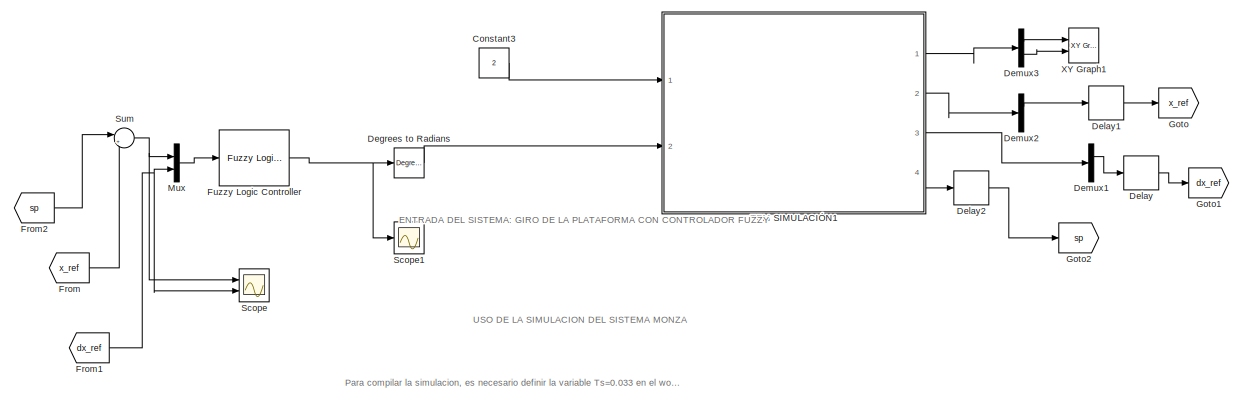
[diagram: root canvas - part 1/2, full width, top band]
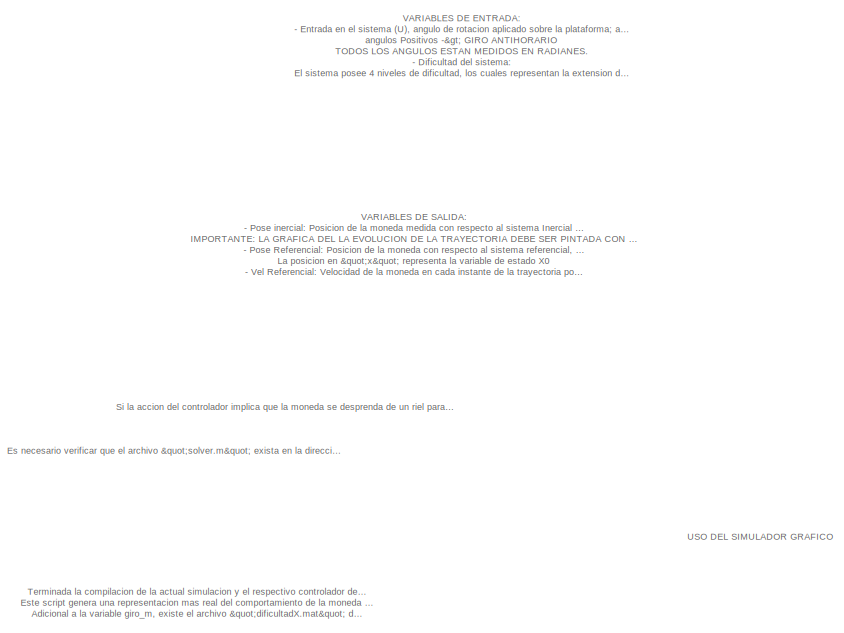
[diagram: root canvas - part 2/2, bottom left region]
MODEL slx_ee304b7265f8
KIND model
CONFIG AbsTol = auto
CONFIG EnableMultiTasking = off
CONFIG FixedStep = auto
CONFIG MaxStep = auto
CONFIG MinStep = auto
CONFIG RelTol = 1e-3
CONFIG SampleTimeConstraint = Unconstrained
CONFIG SolverName = VariableStepAuto
CONFIG StartTime = 0.0
CONFIG StopTime = 20
BLOCK [Constant] Constant3
  Value = 2
BLOCK [Reference] Degrees to Radians  REF=simulink_extras/Transformations/Degrees to
Radians
  Ports = [1, 1]
  SourceBlock = simulink_extras/Transformations/Degrees to\nRadians
  SourceProductBaseCode = SL
  SourceType = DegreesToRadians
BLOCK [Delay] Delay
  DelayLength = 1
  InitialCondition = 0
  InputPortMap = u0
  Ports = [1, 1]
BLOCK [Delay] Delay1
  DelayLength = 1
  InitialCondition = 0
  InputPortMap = u0
  Ports = [1, 1]
BLOCK [Delay] Delay2
  DelayLength = 1
  InitialCondition = 0
  InputPortMap = u0
  Ports = [1, 1]
BLOCK [Demux] Demux1
  Outputs = 2
  Ports = [1, 2]
BLOCK [Demux] Demux2
  Outputs = 2
  Ports = [1, 2]
BLOCK [Demux] Demux3
  Outputs = 2
  Ports = [1, 2]
BLOCK [From] From
  GotoTag = x_ref
BLOCK [From] From1
  GotoTag = dx_ref
BLOCK [From] From2
  GotoTag = sp
BLOCK [Reference] Fuzzy Logic Controller  REF=fuzblock/Fuzzy Logic   (lib defined in mdl_858b3b3e7478)
Controller
  Ports = [1, 1]
  SourceBlock = fuzblock/Fuzzy Logic \nController
  SourceProductBaseCode = FL
  SourceType = Fuzzy Inference System
BLOCK [Goto] Goto
  GotoTag = x_ref
BLOCK [Goto] Goto1
  GotoTag = dx_ref
BLOCK [Goto] Goto2
  GotoTag = sp
BLOCK [Mux] Mux
  DisplayOption = bar
  Inputs = 2
  Ports = [2, 1]
BLOCK [Scope] Scope
  Floating = off
  NumInputPorts = 2
  Ports = [2]
  ScopeSpecificationString = Simulink.scopes.TimeScopeBlockCfg('CurrentConfiguration', extmgr.ConfigurationSet(extmgr.Configuration('Core','General UI',true),extmgr.Configuration('Core','Source UI',true),extmgr.Configuration('Sources','WiredSimulink',true),extmgr.Configuration('Visuals','Time Domain',true,'SerializedDisplays',{struct('MinYLimReal','-0.53071','MaxYLimReal','0.50894','YLabelReal','','MinYLimMag','0.00000','MaxY...<+1363ch>
BLOCK [Scope] Scope1
  Floating = off
  NumInputPorts = 1
  Ports = [1]
  ScopeSpecificationString = Simulink.scopes.TimeScopeBlockCfg('CurrentConfiguration', extmgr.ConfigurationSet(extmgr.Configuration('Core','General UI',true),extmgr.Configuration('Core','Source UI',true),extmgr.Configuration('Sources','WiredSimulink',true,'DataLoggingVariableName','ScopeData1'),extmgr.Configuration('Visuals','Time Domain',true,'SerializedDisplays',{struct('MinYLimReal','-25.32927','MaxYLimReal','27.93481','YL...<+1388ch>
BLOCK [Sum] Sum
  Inputs = |+-
  Ports = [2, 1]
BLOCK [ModelReference] TFM SIMULACIÓN1
  Gain = 0.05
  Gain2 = 0.013
  ModelNameDialog = TFM_SIMULACI_N1.slx
  ModelReferenceVersion = 7.2
  Ports = [2, 4]
  UsingDefaultArgumentValue = 0,0
BLOCK [Reference] XY Graph1  REF=simulink/Sinks/XY Graph
  Ports = [2]
  SourceBlock = simulink/Sinks/XY Graph
  SourceProductBaseCode = SL
  SourceType = XY scope.
ANNOTATION (root): VARIABLES DE ENTRADA: - Entrada en el sistema (U), angulo de rotacion aplicado sobre la plataforma; angulos Negativos -> GIRO HORARIO angulos Positivos -> GIRO ANTIHORARIO TODOS LOS ANGULOS ESTAN MEDIDOS EN RADIANES. - Dificultad del sistema: El sistema posee 4 niveles de dificultad, los cuales representan la extension de los rieles parabolicos en las pistas donde se desplaza la moneda. Para estab...<+97ch>
ANNOTATION (root): VARIABLES DE SALIDA: - Pose inercial: Posicion de la moneda medida con respecto al sistema Inercial (estatico)en el centro geometrico del disco. IMPORTANTE: LA GRAFICA DEL LA EVOLUCION DE LA TRAYECTORIA DEBE SER PINTADA CON RESPECTO A ESTE SISTEMA - Pose Referencial: Posicion de la moneda con respecto al sistema referencial, sistema sobre el cual estan descritas las ecuaciones de la parabola que d...<+257ch>
ANNOTATION (root): Es necesario verificar que el archivo "solver.m" exista en la direccion actual donde se esta ejecutando la simulacion debido a que este script es importante para resolver las ecuaciones de trayectoria de la caida de la moneda con el impacto del posterior riel parabolico.
ANNOTATION (root): Para compilar la simulacion, es necesario definir la variable Ts=0.033 en el workspace de MATLAB.
ANNOTATION (root): Si la accion del controlador implica que la moneda se desprenda de un riel parabolico y el juego "termine", la simulacion se detendra emitiendo un error de sistema, no significa que existe error de compilacion.
ANNOTATION (root): Terminada la compilacion de la actual simulacion y el respectivo controlador desarrollado, se gebera una variable llamada " giro_m " en el workspace, esta variable es el ingreso del script denominado " simulacion_monza_tfm.m ". Este script genera una representacion mas real del comportamiento de la moneda sobre la plataforma no lineal existente. Adicional a la variable giro_m, existe el archivo "d...<+214ch>
ANNOTATION (root): USO DE LA SIMULACION DEL SISTEMA MONZA
ANNOTATION (root): USO DEL SIMULADOR GRAFICO
ANNOTATION (root): ENTRADA DEL SISTEMA: GIRO DE LA PLATAFORMA CON CONTROLADOR FUZZY
LINE Constant3:1 -> TFM SIMULACIÓN1:1
LINE Degrees to Radians:1 -> TFM SIMULACIÓN1:2
LINE Delay1:1 -> Goto:1
LINE Delay2:1 -> Goto2:1
LINE Delay:1 -> Goto1:1
LINE Demux1:1 -> Delay:1
LINE Demux2:1 -> Delay1:1
LINE Demux3:1 -> XY Graph1:1
LINE Demux3:2 -> XY Graph1:2
NET From1:1 -> Mux:2, Scope:2
LINE From2:1 -> Sum:1
LINE From:1 -> Sum:2
NET Fuzzy Logic Controller:1 -> Degrees to Radians:1, Scope1:1
LINE Mux:1 -> Fuzzy Logic Controller:1
NET Sum:1 -> Mux:1, Scope:1
LINE TFM SIMULACIÓN1:1 -> Demux3:1
LINE TFM SIMULACIÓN1:2 -> Demux2:1
LINE TFM SIMULACIÓN1:3 -> Demux1:1
LINE TFM SIMULACIÓN1:4 -> Delay2:1
note: NET lines group one-source signal fan-out (src -> all destinations, sorted); 1:1 wires keep LINE
